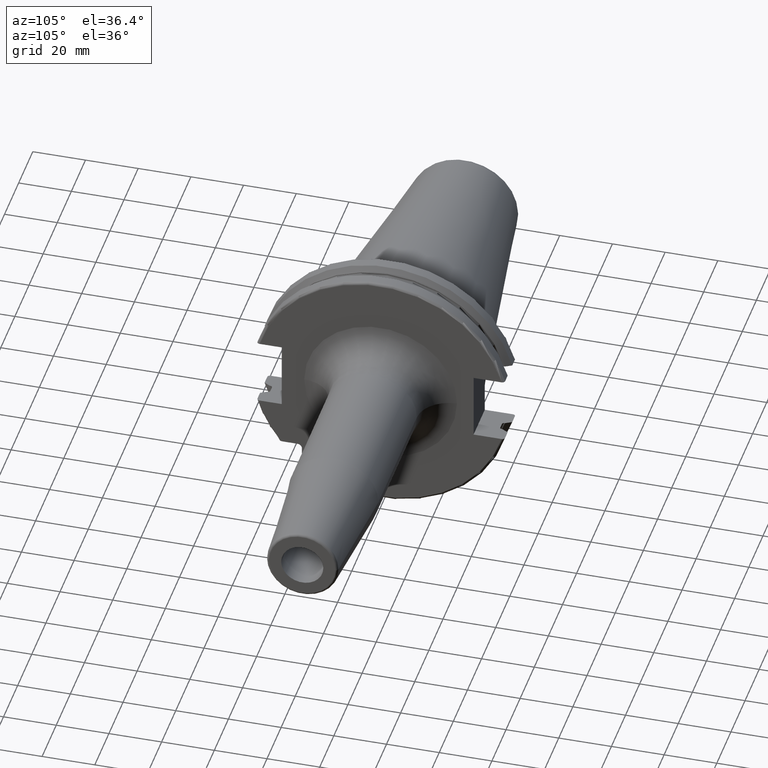
[diagram: clean part render]
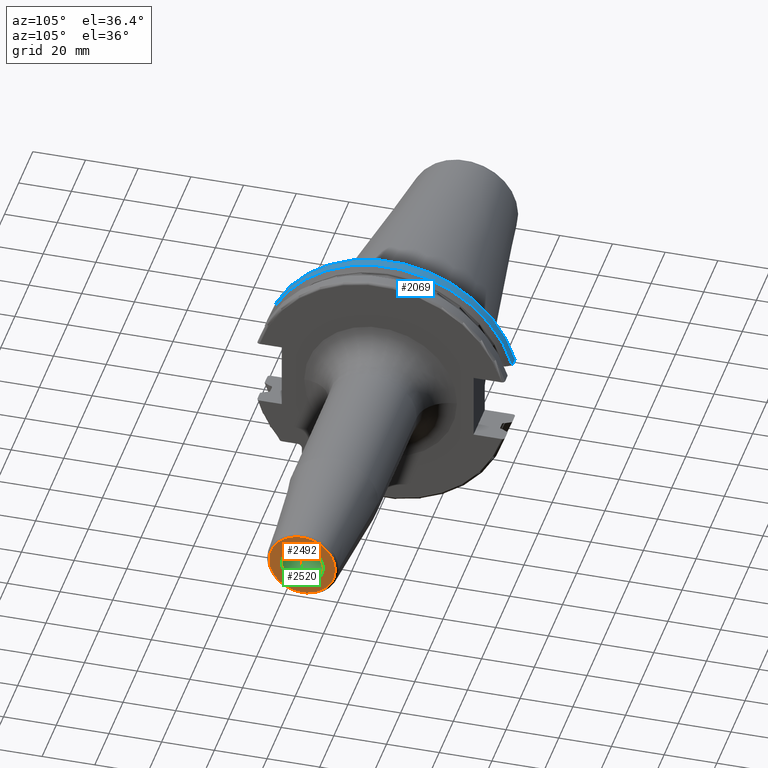
[diagram: same view with three faces highlighted in distinct colors, each labeled with its STEP entity id]
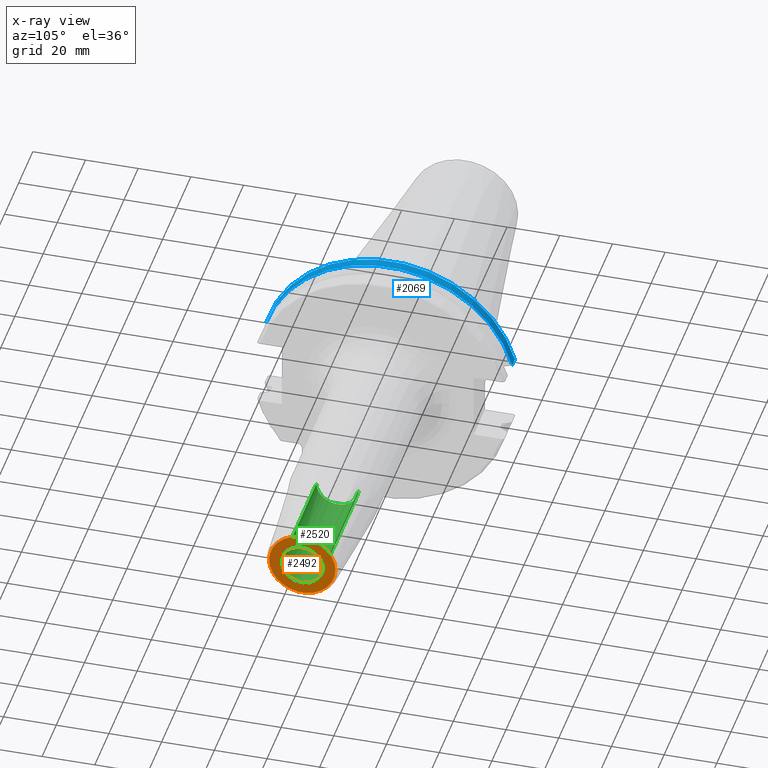
[diagram: x-ray of the same camera — body ghosted, the three highlighted faces saturated]
A machine part, auxiliary view with three faces highlighted in distinct colors.
The next image is the same camera in x-ray (body ghosted, the three faces saturated) — at least one of them is partly hidden behind the body in this view.
Their STEP definitions:

[orange] entity #2492 — the highlighted planar face has unit normal (1, 0, 0).
#962=CARTESIAN_POINT('',(1.3E2,0.E0,0.E0));
#963=DIRECTION('',(-1.E0,0.E0,0.E0));
#964=DIRECTION('',(0.E0,1.E0,0.E0));
#965=AXIS2_PLACEMENT_3D('',#962,#963,#964);
#967=CARTESIAN_POINT('',(1.3E2,0.E0,0.E0));
#968=DIRECTION('',(-1.E0,0.E0,0.E0));
#969=DIRECTION('',(0.E0,-1.E0,0.E0));
#970=AXIS2_PLACEMENT_3D('',#967,#968,#969);
#972=CARTESIAN_POINT('',(1.3E2,0.E0,0.E0));
#973=DIRECTION('',(-1.E0,0.E0,0.E0));
#974=DIRECTION('',(0.E0,-1.E0,0.E0));
#975=AXIS2_PLACEMENT_3D('',#972,#973,#974);
#977=CARTESIAN_POINT('',(1.3E2,0.E0,0.E0));
#978=DIRECTION('',(-1.E0,0.E0,0.E0));
#979=DIRECTION('',(0.E0,1.E0,0.E0));
#980=AXIS2_PLACEMENT_3D('',#977,#978,#979);
#1440=CARTESIAN_POINT('',(1.3E2,1.257560950834E1,0.E0));
#1441=CARTESIAN_POINT('',(1.3E2,-1.257560950834E1,0.E0));
#1442=VERTEX_POINT('',#1440);
#1443=VERTEX_POINT('',#1441);
#1456=CARTESIAN_POINT('',(1.3E2,-8.E0,0.E0));
#1457=CARTESIAN_POINT('',(1.3E2,8.E0,0.E0));
#1458=VERTEX_POINT('',#1456);
#1459=VERTEX_POINT('',#1457);
#2477=CARTESIAN_POINT('',(1.3E2,0.E0,0.E0));
#2478=DIRECTION('',(1.E0,0.E0,0.E0));
#2479=DIRECTION('',(0.E0,-1.E0,0.E0));
#2480=AXIS2_PLACEMENT_3D('',#2477,#2478,#2479);
#2481=PLANE('',#2480);
#2482=ORIENTED_EDGE('',*,*,#2444,.T.);
#2483=ORIENTED_EDGE('',*,*,#2459,.T.);
#2484=EDGE_LOOP('',(#2482,#2483));
#2485=FACE_OUTER_BOUND('',#2484,.F.);
#2487=ORIENTED_EDGE('',*,*,#2486,.F.);
#2489=ORIENTED_EDGE('',*,*,#2488,.F.);
#2490=EDGE_LOOP('',(#2487,#2489));
#2491=FACE_BOUND('',#2490,.F.);
#2492=ADVANCED_FACE('',(#2485,#2491),#2481,.T.);
#966=CIRCLE('',#965,1.257560950834E1);
#971=CIRCLE('',#970,1.257560950834E1);
#976=CIRCLE('',#975,8.E0);
#981=CIRCLE('',#980,8.E0);
#2444=EDGE_CURVE('',#1442,#1443,#966,.T.);
#2459=EDGE_CURVE('',#1443,#1442,#971,.T.);
#2486=EDGE_CURVE('',#1458,#1459,#976,.T.);
#2488=EDGE_CURVE('',#1459,#1458,#981,.T.);

[blue] entity #2069 — the highlighted cylindrical surface (partial cylindrical patch) has radius 48.7375 mm, axis along (1, 0, 0).
#333=CARTESIAN_POINT('',(7.934621614173E0,4.699929686974E1,1.29E1));
#345=CARTESIAN_POINT('',(7.934621614173E0,-4.699929686974E1,1.29E1));
#476=DIRECTION('',(1.E0,0.E0,0.E0));
#477=VECTOR('',#476,3.734621614173E0);
#478=CARTESIAN_POINT('',(4.2E0,4.699929686974E1,1.29E1));
#479=LINE('',#478,#477);
#480=CARTESIAN_POINT('',(7.934621614173E0,0.E0,0.E0));
#481=DIRECTION('',(1.E0,0.E0,0.E0));
#482=DIRECTION('',(0.E0,9.643354064066E-1,2.646832521159E-1));
#483=AXIS2_PLACEMENT_3D('',#480,#481,#482);
#485=DIRECTION('',(1.E0,0.E0,0.E0));
#486=VECTOR('',#485,3.734621614173E0);
#487=CARTESIAN_POINT('',(4.2E0,-4.699929686974E1,1.29E1));
#488=LINE('',#487,#486);
#518=CARTESIAN_POINT('',(4.2E0,0.E0,0.E0));
#519=DIRECTION('',(1.E0,0.E0,0.E0));
#520=DIRECTION('',(0.E0,9.643354064066E-1,2.646832521159E-1));
#521=AXIS2_PLACEMENT_3D('',#518,#519,#520);
#1316=VERTEX_POINT('',#333);
#1317=VERTEX_POINT('',#345);
#1344=CARTESIAN_POINT('',(4.2E0,4.699929686974E1,1.29E1));
#1345=VERTEX_POINT('',#1344);
#1348=CARTESIAN_POINT('',(4.2E0,-4.699929686974E1,1.29E1));
#1349=VERTEX_POINT('',#1348);
#2057=CARTESIAN_POINT('',(-1.076325E2,0.E0,0.E0));
#2058=DIRECTION('',(1.E0,0.E0,0.E0));
#2059=DIRECTION('',(0.E0,-1.E0,0.E0));
#2060=AXIS2_PLACEMENT_3D('',#2057,#2058,#2059);
#2061=CYLINDRICAL_SURFACE('',#2060,4.87375E1);
#2062=ORIENTED_EDGE('',*,*,#1893,.T.);
#2063=ORIENTED_EDGE('',*,*,#1926,.T.);
#2064=ORIENTED_EDGE('',*,*,#1957,.F.);
#2066=ORIENTED_EDGE('',*,*,#2065,.F.);
#2067=EDGE_LOOP('',(#2062,#2063,#2064,#2066));
#2068=FACE_OUTER_BOUND('',#2067,.F.);
#2069=ADVANCED_FACE('',(#2068),#2061,.T.);
#484=CIRCLE('',#483,4.87375E1);
#522=CIRCLE('',#521,4.87375E1);
#1893=EDGE_CURVE('',#1345,#1316,#479,.T.);
#1926=EDGE_CURVE('',#1316,#1317,#484,.T.);
#1957=EDGE_CURVE('',#1349,#1317,#488,.T.);
#2065=EDGE_CURVE('',#1345,#1349,#522,.T.);

[green] entity #2520 — the highlighted cylindrical surface (edge-blend (fillet) strip) has radius 8 mm, axis along (-1, 0, 0).
#977=CARTESIAN_POINT('',(1.3E2,0.E0,0.E0));
#978=DIRECTION('',(-1.E0,0.E0,0.E0));
#979=DIRECTION('',(0.E0,1.E0,0.E0));
#980=AXIS2_PLACEMENT_3D('',#977,#978,#979);
#982=DIRECTION('',(-1.E0,0.E0,0.E0));
#983=VECTOR('',#982,5.E1);
#984=CARTESIAN_POINT('',(1.3E2,-8.E0,0.E0));
#985=LINE('',#984,#983);
#986=DIRECTION('',(-1.E0,0.E0,0.E0));
#987=VECTOR('',#986,5.E1);
#988=CARTESIAN_POINT('',(1.3E2,8.E0,0.E0));
#989=LINE('',#988,#987);
#995=CARTESIAN_POINT('',(8.E1,0.E0,0.E0));
#996=DIRECTION('',(-1.E0,0.E0,0.E0));
#997=DIRECTION('',(0.E0,1.E0,0.E0));
#998=AXIS2_PLACEMENT_3D('',#995,#996,#997);
#1452=CARTESIAN_POINT('',(8.E1,-8.E0,0.E0));
#1453=CARTESIAN_POINT('',(8.E1,8.E0,0.E0));
#1454=VERTEX_POINT('',#1452);
#1455=VERTEX_POINT('',#1453);
#1456=CARTESIAN_POINT('',(1.3E2,-8.E0,0.E0));
#1457=CARTESIAN_POINT('',(1.3E2,8.E0,0.E0));
#1458=VERTEX_POINT('',#1456);
#1459=VERTEX_POINT('',#1457);
#2508=CARTESIAN_POINT('',(1.3E2,0.E0,0.E0));
#2509=DIRECTION('',(-1.E0,0.E0,0.E0));
#2510=DIRECTION('',(0.E0,-1.E0,0.E0));
#2511=AXIS2_PLACEMENT_3D('',#2508,#2509,#2510);
#2512=CYLINDRICAL_SURFACE('',#2511,8.E0);
#2513=ORIENTED_EDGE('',*,*,#2488,.T.);
#2514=ORIENTED_EDGE('',*,*,#2503,.T.);
#2516=ORIENTED_EDGE('',*,*,#2515,.F.);
#2517=ORIENTED_EDGE('',*,*,#2499,.F.);
#2518=EDGE_LOOP('',(#2513,#2514,#2516,#2517));
#2519=FACE_OUTER_BOUND('',#2518,.F.);
#2520=ADVANCED_FACE('',(#2519),#2512,.F.);
#981=CIRCLE('',#980,8.E0);
#999=CIRCLE('',#998,8.E0);
#2488=EDGE_CURVE('',#1459,#1458,#981,.T.);
#2499=EDGE_CURVE('',#1459,#1455,#989,.T.);
#2503=EDGE_CURVE('',#1458,#1454,#985,.T.);
#2515=EDGE_CURVE('',#1455,#1454,#999,.T.);